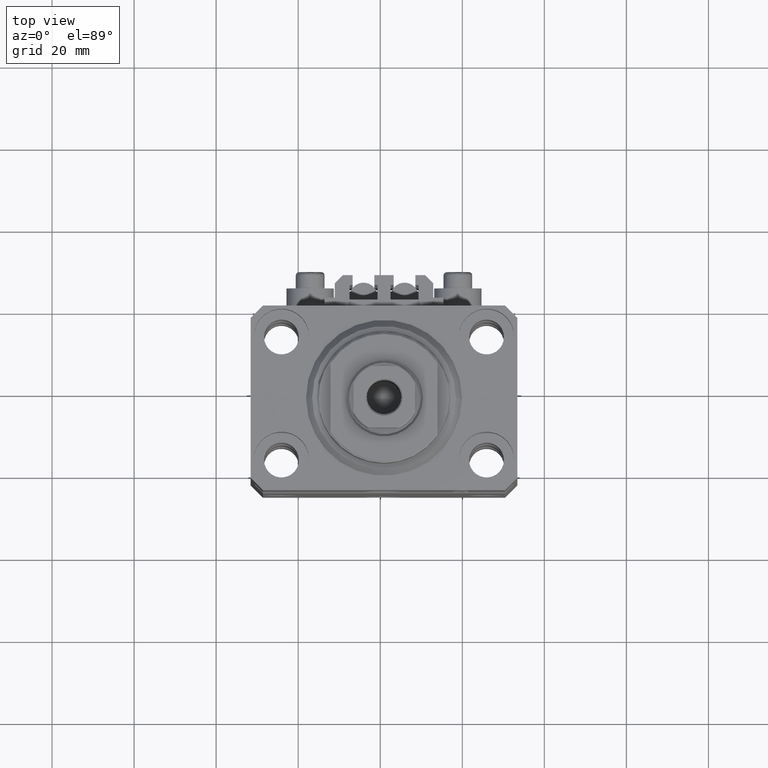
[diagram: clean part render]
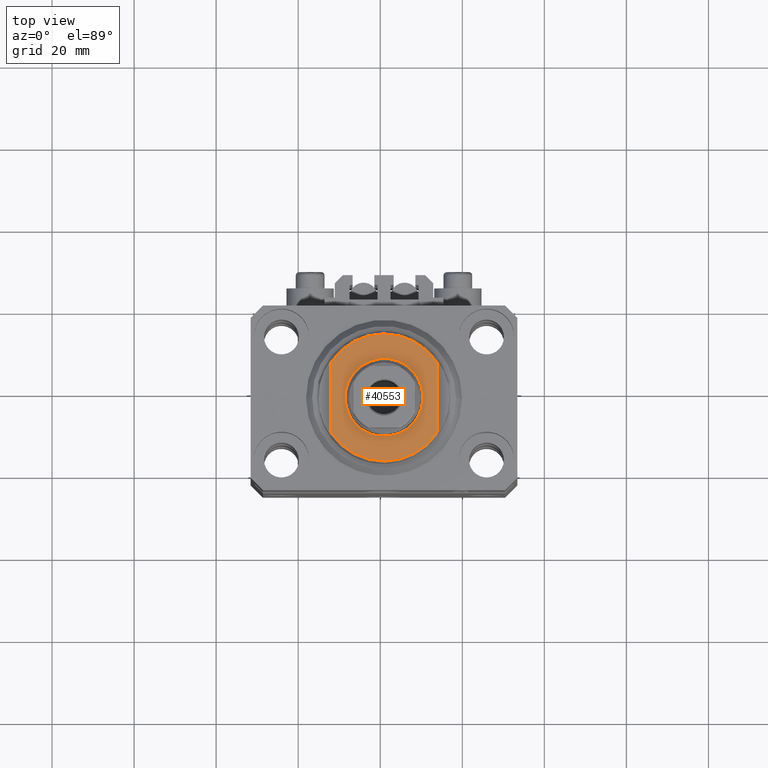
[diagram: same view with one face highlighted and labeled with its STEP entity id]
A machine part, top view. The second image highlights one B-rep face of the part: STEP entity #40553.
In plain terms, the highlighted planar face has unit normal (0, 0, 1).
Its self-contained STEP definition (entity closure, byte-faithful):
#815 = ORIENTED_EDGE ( 'NONE', *, *, #37542, .T. ) ;
#894 = ORIENTED_EDGE ( 'NONE', *, *, #28109, .F. ) ;
#1265 = ORIENTED_EDGE ( 'NONE', *, *, #47851, .T. ) ;
#1706 = DIRECTION ( 'NONE',  ( 0.000000000000000000, 0.000000000000000000, -1.000000000000000000 ) ) ;
#2614 = FACE_OUTER_BOUND ( 'NONE', #29338, .T. ) ;
#4946 = CARTESIAN_POINT ( 'NONE',  ( 0.000000000000000000, 0.000000000000000000, -6.500000000000000000 ) ) ;
#5135 = CIRCLE ( 'NONE', #46330, 9.500000000000015987 ) ;
#6054 = DIRECTION ( 'NONE',  ( -0.000000000000000000, -1.000000000000000000, -0.000000000000000000 ) ) ;
#6821 = PLANE ( 'NONE',  #9586 ) ;
#7152 = CARTESIAN_POINT ( 'NONE',  ( 0.000000000000000000, 0.000000000000000000, -6.500000000000000000 ) ) ;
#8132 = EDGE_CURVE ( 'NONE', #45147, #29939, #15942, .T. ) ;
#9586 = AXIS2_PLACEMENT_3D ( 'NONE', #39835, #28684, #17760 ) ;
#10427 = CIRCLE ( 'NONE', #23087, 9.500000000000015987 ) ;
#11867 = ORIENTED_EDGE ( 'NONE', *, *, #47280, .T. ) ;
#12906 = VERTEX_POINT ( 'NONE', #45146 ) ;
#13139 = DIRECTION ( 'NONE',  ( -1.000000000000000000, 0.000000000000000000, 0.000000000000000000 ) ) ;
#13804 = CARTESIAN_POINT ( 'NONE',  ( -13.00000000000000000, 8.440971508067139695, -6.500000000000000000 ) ) ;
#15423 = VERTEX_POINT ( 'NONE', #43084 ) ;
#15942 = CIRCLE ( 'NONE', #46035, 15.50000000000003730 ) ;
#17410 = CARTESIAN_POINT ( 'NONE',  ( 0.000000000000000000, 0.000000000000000000, -6.500000000000000000 ) ) ;
#17760 = DIRECTION ( 'NONE',  ( -1.000000000000000000, 0.000000000000000000, -0.000000000000000000 ) ) ;
#21604 = AXIS2_PLACEMENT_3D ( 'NONE', #17410, #25608, #32557 ) ;
#21948 = VERTEX_POINT ( 'NONE', #26994 ) ;
#22669 = LINE ( 'NONE', #31093, #27169 ) ;
#23087 = AXIS2_PLACEMENT_3D ( 'NONE', #24562, #36444, #13139 ) ;
#24427 = LINE ( 'NONE', #39540, #29486 ) ;
#24562 = CARTESIAN_POINT ( 'NONE',  ( 0.000000000000000000, 0.000000000000000000, -6.500000000000000000 ) ) ;
#25608 = DIRECTION ( 'NONE',  ( 0.000000000000000000, 0.000000000000000000, -1.000000000000000000 ) ) ;
#26503 = EDGE_CURVE ( 'NONE', #31757, #12906, #10427, .T. ) ;
#26994 = CARTESIAN_POINT ( 'NONE',  ( 13.00000000000000000, -8.440971508067139695, -6.500000000000000000 ) ) ;
#27169 = VECTOR ( 'NONE', #33823, 1000.000000000000000 ) ;
#28109 = EDGE_CURVE ( 'NONE', #45147, #15423, #24427, .T. ) ;
#28553 = CARTESIAN_POINT ( 'NONE',  ( -9.500000000000015987, 0.000000000000000000, -6.500000000000000000 ) ) ;
#28684 = DIRECTION ( 'NONE',  ( 0.000000000000000000, 0.000000000000000000, -1.000000000000000000 ) ) ;
#29338 = EDGE_LOOP ( 'NONE', ( #32866, #11867, #1265, #894 ) ) ;
#29486 = VECTOR ( 'NONE', #6054, 1000.000000000000000 ) ;
#29939 = VERTEX_POINT ( 'NONE', #31695 ) ;
#29976 = DIRECTION ( 'NONE',  ( -1.000000000000000000, 0.000000000000000000, 0.000000000000000000 ) ) ;
#31093 = CARTESIAN_POINT ( 'NONE',  ( 13.00000000000000000, -43.08131845707602992, -6.500000000000000000 ) ) ;
#31695 = CARTESIAN_POINT ( 'NONE',  ( 13.00000000000000000, 8.440971508067139695, -6.500000000000000000 ) ) ;
#31757 = VERTEX_POINT ( 'NONE', #28553 ) ;
#32557 = DIRECTION ( 'NONE',  ( -1.000000000000000000, 0.000000000000000000, 0.000000000000000000 ) ) ;
#32866 = ORIENTED_EDGE ( 'NONE', *, *, #8132, .T. ) ;
#33823 = DIRECTION ( 'NONE',  ( 0.000000000000000000, -1.000000000000000000, -0.000000000000000000 ) ) ;
#36444 = DIRECTION ( 'NONE',  ( -0.000000000000000000, -0.000000000000000000, 1.000000000000000000 ) ) ;
#37542 = EDGE_CURVE ( 'NONE', #12906, #31757, #5135, .T. ) ;
#38605 = ORIENTED_EDGE ( 'NONE', *, *, #26503, .T. ) ;
#39540 = CARTESIAN_POINT ( 'NONE',  ( -13.00000000000000000, -43.08131845707602992, -6.500000000000000000 ) ) ;
#39835 = CARTESIAN_POINT ( 'NONE',  ( 0.000000000000000000, 0.000000000000000000, -6.500000000000000000 ) ) ;
#40553 = ADVANCED_FACE ( 'NONE', ( #40813, #2614 ), #6821, .T. ) ;
#40813 = FACE_BOUND ( 'NONE', #41723, .T. ) ;
#41723 = EDGE_LOOP ( 'NONE', ( #38605, #815 ) ) ;
#41870 = DIRECTION ( 'NONE',  ( -0.000000000000000000, -0.000000000000000000, 1.000000000000000000 ) ) ;
#43084 = CARTESIAN_POINT ( 'NONE',  ( -13.00000000000000000, -8.440971508067139695, -6.500000000000000000 ) ) ;
#43151 = DIRECTION ( 'NONE',  ( -1.000000000000000000, 0.000000000000000000, 0.000000000000000000 ) ) ;
#45146 = CARTESIAN_POINT ( 'NONE',  ( 9.500000000000015987, 1.163414459189987457E-15, -6.500000000000000000 ) ) ;
#45147 = VERTEX_POINT ( 'NONE', #13804 ) ;
#46035 = AXIS2_PLACEMENT_3D ( 'NONE', #4946, #1706, #43151 ) ;
#46330 = AXIS2_PLACEMENT_3D ( 'NONE', #7152, #41870, #29976 ) ;
#47280 = EDGE_CURVE ( 'NONE', #29939, #21948, #22669, .T. ) ;
#47851 = EDGE_CURVE ( 'NONE', #21948, #15423, #48533, .T. ) ;
#48533 = CIRCLE ( 'NONE', #21604, 15.50000000000003730 ) ;